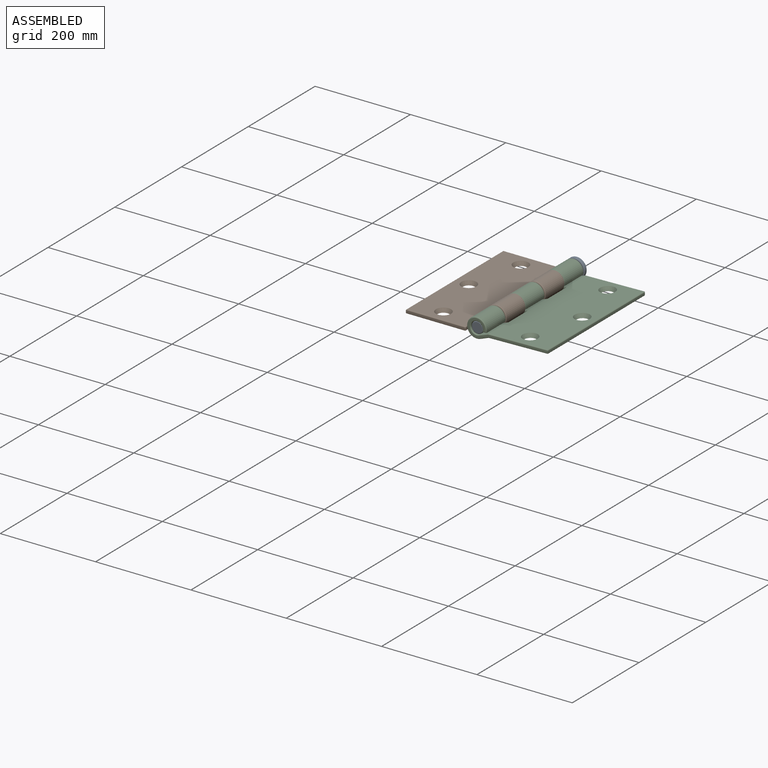
[diagram: assembled view]
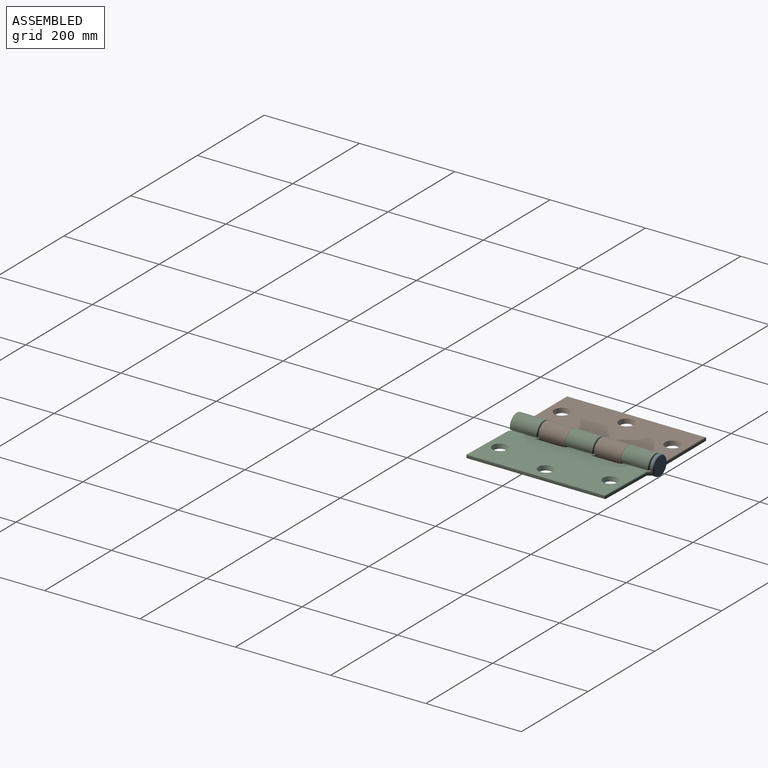
[diagram: assembled view, second angle]
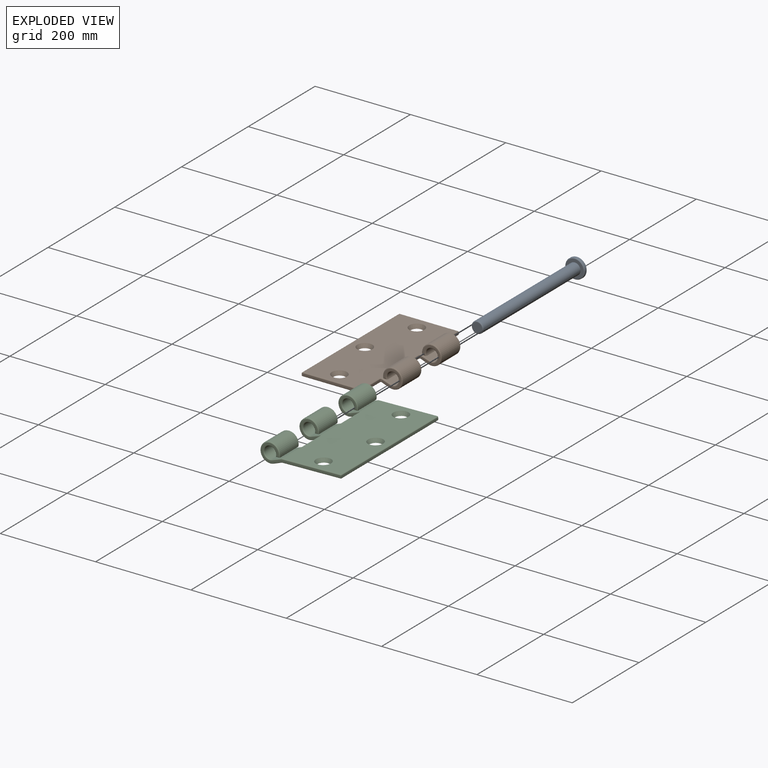
[diagram: exploded view]
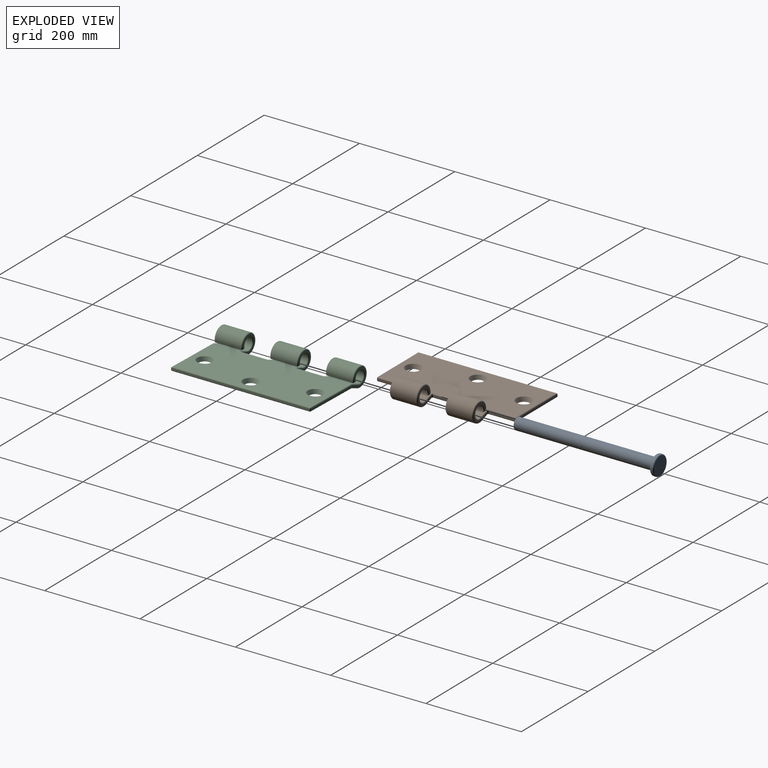
[diagram: exploded view, second angle]
ASSEMBLY  parts=3 mates=2
PART A: 8 faces, bbox 44.4x300x44.4 mm
  f0: cylinder r=12.25mm len=290mm, axis (0,1,0), area 22321mm2, adj f4,f7
  f1: plane 20.5x20.5mm, normal (0,-1,0), area 330.1mm2, adj f7
  f2: cylinder r=20.5mm len=41mm, axis (0,-1,0), area 515.2mm2, adj f5,f6
  f3: plane 37x37mm, normal (0,1,0), area 1075.2mm2, adj f6
  f4: plane 37x37mm, normal (0,-1,0), area 603.8mm2, adj f0,f5
  f5: torus R=18.5mm, axis (0,1,0), area 390.3mm2, adj f2,f4
  f6: torus R=18.5mm, axis (0,1,0), area 390.3mm2, adj f2,f3
  f7: torus R=10.25mm, axis (0,1,0), area 227.5mm2, adj f0,f1
PART B: 80 faces, bbox 171.7x292x44.4 mm
  f0: plane 54.85x17.59mm, normal (-0.34,0,-0.94), area 1016.5mm2, adj f2,f14,f58,f59,f69,f71
  f1: plane 54.85x17.59mm, normal (-0.34,0,-0.94), area 1016.5mm2, adj f3,f14,f35,f39,f78,f79
  f2: cylinder r=20.5mm len=54.4mm, axis (0,1,0), area 5913.6mm2, adj f0,f4,f56,f67
  f3: cylinder r=20.5mm len=54.4mm, axis (0,1,0), area 5913.6mm2, adj f1,f5,f33,f76
  f4: plane 54.4x8.42mm, normal (0,0,-1), area 458.3mm2, adj f2,f6,f54,f65
  f5: plane 54.4x8.42mm, normal (0,0,-1), area 458.3mm2, adj f3,f7,f31,f74
  f6: cylinder r=12.5mm len=54.4mm, axis (0,1,0), area 3703.3mm2, adj f4,f8,f52,f63
  f7: cylinder r=12.5mm len=54.4mm, axis (0,1,0), area 3703.3mm2, adj f5,f9,f29,f72
  f8: plane 56.21x20.54mm, normal (0.32,0,0.95), area 1179.8mm2, adj f6,f12,f46,f48,f50,f60,f61,f62
  f9: plane 56.21x20.54mm, normal (0.32,0,0.95), area 1179.8mm2, adj f7,f12,f30,f32,f34,f66,f68,f70
  f10: plane 123x4mm, normal (0,-1,0), area 492mm2, adj f13,f37,f44,f49
  f11: plane 125x4mm, normal (0,1,0), area 500mm2, adj f13,f24,f40,f53
  f12: plane 288x123mm, normal (0,0,1), area 32665.2mm2, adj f8,f9,f15,f16,f17,f34,f36,f37
  f13: plane 292x4mm, normal (-1,0,0), area 1168mm2, adj f10,f11,f36,f51
  f14: plane 288x123.06mm, normal (0,0,-1), area 33720.8mm2, adj f0,f1,f15,f16,f17,f39,f42,f45
  f15: cone r=12mm half-angle=26.6deg, axis (0,0,1), area 786.8mm2, adj f12,f14
  f16: cone r=12mm half-angle=26.6deg, axis (0,0,1), area 786.8mm2, adj f12,f14
  f17: cone r=16mm half-angle=26.6deg, axis (0,0,1), area 786.8mm2, adj f12,f14
  f18: plane 41x37mm, normal (0,-1,0), area 413.9mm2, adj f25,f29,f30,f31,f33,f35
  f19: plane 54.4x4mm, normal (1,0,0), area 217.6mm2, adj f25,f38,f44,f45
  f20: plane 41x37mm, normal (0,-1,0), area 413.9mm2, adj f26,f61,f63,f65,f67,f69
  f21: plane 41x37mm, normal (0,1,0), area 413.9mm2, adj f27,f70,f72,f74,f76,f78
  f22: plane 54.4x4mm, normal (1,0,0), area 217.6mm2, adj f26,f27,f64,f75
  f23: plane 41x37mm, normal (0,1,0), area 413.9mm2, adj f28,f50,f52,f54,f56,f58
  f24: plane 56.4x4mm, normal (1,0,0), area 225.6mm2, adj f11,f28,f43,f55
  f25: cylinder r=2mm len=4.59mm, axis (0,0,-1), area 12.3mm2, adj f18,f19,f32,f34,f39,f42
  f26: cylinder r=2mm len=4.59mm, axis (0,0,-1), area 12.3mm2, adj f20,f22,f60,f62,f71,f73
  f27: cylinder r=2mm len=4.59mm, axis (0,0,1), area 12.3mm2, adj f21,f22,f66,f68,f77,f79
  f28: cylinder r=2mm len=4.59mm, axis (0,0,1), area 12.3mm2, adj f23,f24,f46,f48,f57,f59
  f29: torus R=14.5mm, axis (0,-1,0), area 222mm2, adj f7,f18,f30,f31
  f30: cylinder r=2mm len=18.54mm, axis (0.95,0,-0.32), area 59.3mm2, adj f9,f18,f29,f32
  f31: cylinder r=2mm len=8.42mm, axis (-1,0,0), area 19.6mm2, adj f5,f18,f29,f33
  f32: bspline ~3.65x3.11mm, area 6mm2, adj f9,f25,f30,f34
  f33: torus R=18.5mm, axis (0,-1,0), area 326.9mm2, adj f3,f18,f31,f35
  f34: torus R=4mm, axis (0,0,-1), area 8.7mm2, adj f9,f12,f25,f32,f38
  f35: cylinder r=2mm len=16.94mm, axis (-0.94,0,0.34), area 54.3mm2, adj f1,f18,f33,f39
  f36: cylinder r=2mm len=292mm, axis (0,1,0), area 911.1mm2, adj f12,f13,f37,f40
  f37: cylinder r=2mm len=123mm, axis (1,0,0), area 383.3mm2, adj f10,f12,f36,f41
  f38: cylinder r=2mm len=54.4mm, axis (0,-1,0), area 170.9mm2, adj f12,f19,f34,f41
  f39: bspline ~2.47x2.33mm, area 3.5mm2, adj f1,f14,f25,f35,f42
  f40: cylinder r=2mm len=125mm, axis (-1,0,0), area 386.4mm2, adj f11,f12,f36,f43
  f41: sphere r=2mm, area 6.3mm2, adj f37,f38,f44
  f42: torus R=4mm, axis (0,0,1), area 9.2mm2, adj f14,f25,f39,f45
  f43: cylinder r=2mm len=56.4mm, axis (0,1,0), area 174mm2, adj f12,f24,f40,f46
  f44: cylinder r=2mm len=4mm, axis (0,0,1), area 12.6mm2, adj f10,f19,f41,f47
  f45: cylinder r=2mm len=54.4mm, axis (0,-1,0), area 170.9mm2, adj f14,f19,f42,f47
  f46: torus R=4mm, axis (0,0,-1), area 8.7mm2, adj f8,f12,f28,f43,f48
  f47: sphere r=2mm, area 6.3mm2, adj f44,f45,f49
  f48: bspline ~3.65x3.11mm, area 6mm2, adj f8,f28,f46,f50
  f49: cylinder r=2mm len=123mm, axis (-1,0,0), area 383.3mm2, adj f10,f14,f47,f51
  f50: cylinder r=2mm len=18.54mm, axis (-0.95,0,0.32), area 59.3mm2, adj f8,f23,f48,f52
  f51: cylinder r=2mm len=292mm, axis (0,1,0), area 911.1mm2, adj f13,f14,f49,f53
  f52: torus R=14.5mm, axis (0,-1,0), area 222mm2, adj f6,f23,f50,f54
  f53: cylinder r=2mm len=125mm, axis (1,0,0), area 386.4mm2, adj f11,f14,f51,f55
  f54: cylinder r=2mm len=8.42mm, axis (1,0,0), area 19.6mm2, adj f4,f23,f52,f56
  f55: cylinder r=2mm len=56.4mm, axis (0,-1,0), area 174mm2, adj f14,f24,f53,f57
  f56: torus R=18.5mm, axis (0,-1,0), area 326.9mm2, adj f2,f23,f54,f58
  f57: torus R=4mm, axis (0,0,1), area 9.2mm2, adj f14,f28,f55,f59
  f58: cylinder r=2mm len=16.94mm, axis (0.94,0,-0.34), area 54.3mm2, adj f0,f23,f56,f59
  f59: bspline ~2.47x2.33mm, area 3.5mm2, adj f0,f14,f28,f57,f58
  f60: bspline ~3.65x3.11mm, area 6mm2, adj f8,f26,f61,f62
  f61: cylinder r=2mm len=18.54mm, axis (0.95,0,-0.32), area 59.3mm2, adj f8,f20,f60,f63
  f62: torus R=4mm, axis (0,0,-1), area 8.7mm2, adj f8,f12,f26,f60,f64
  f63: torus R=14.5mm, axis (0,-1,0), area 222mm2, adj f6,f20,f61,f65
  f64: cylinder r=2mm len=54.4mm, axis (0,1,0), area 170.9mm2, adj f12,f22,f62,f66
  f65: cylinder r=2mm len=8.42mm, axis (-1,0,0), area 19.6mm2, adj f4,f20,f63,f67
  f66: torus R=4mm, axis (0,0,-1), area 8.7mm2, adj f9,f12,f27,f64,f68
  f67: torus R=18.5mm, axis (0,-1,0), area 326.9mm2, adj f2,f20,f65,f69
  f68: bspline ~2.75x2.54mm, area 6mm2, adj f9,f27,f66,f70
  f69: cylinder r=2mm len=16.94mm, axis (-0.94,0,0.34), area 54.3mm2, adj f0,f20,f67,f71
  f70: cylinder r=2mm len=18.54mm, axis (-0.95,0,0.32), area 59.3mm2, adj f9,f21,f68,f72
  f71: bspline ~2.47x2.33mm, area 3.5mm2, adj f0,f14,f26,f69,f73
  f72: torus R=14.5mm, axis (0,-1,0), area 222mm2, adj f7,f21,f70,f74
  f73: torus R=4mm, axis (0,0,1), area 9.2mm2, adj f14,f26,f71,f75
  f74: cylinder r=2mm len=8.42mm, axis (1,0,0), area 19.6mm2, adj f5,f21,f72,f76
  f75: cylinder r=2mm len=54.4mm, axis (0,-1,0), area 170.9mm2, adj f14,f22,f73,f77
  f76: torus R=18.5mm, axis (0,-1,0), area 326.9mm2, adj f3,f21,f74,f78
  f77: torus R=4mm, axis (0,0,1), area 9.2mm2, adj f14,f27,f75,f79
  f78: cylinder r=2mm len=16.94mm, axis (0.94,0,-0.34), area 54.3mm2, adj f1,f21,f76,f79
  f79: bspline ~2.47x2.33mm, area 3.5mm2, adj f1,f14,f27,f77,f78
PART C: 92 faces, bbox 171.7x292x44.4 mm
  f0: plane 54.63x17.59mm, normal (0.34,0,-0.94), area 1016.4mm2, adj f2,f17,f42,f44,f86
  f1: plane 54.85x17.59mm, normal (0.34,0,-0.94), area 1016.5mm2, adj f3,f17,f51,f52,f62,f64
  f2: cylinder r=20.5mm len=54.4mm, axis (0,1,0), area 5913.6mm2, adj f0,f4,f40,f88
  f3: cylinder r=20.5mm len=54.4mm, axis (0,1,0), area 5913.6mm2, adj f1,f5,f49,f60
  f4: plane 54.4x8.42mm, normal (0,0,-1), area 458.3mm2, adj f2,f6,f38,f90
  f5: plane 54.4x8.42mm, normal (0,0,-1), area 458.3mm2, adj f3,f7,f47,f58
  f6: cylinder r=12.5mm len=54.4mm, axis (0,1,0), area 3703.3mm2, adj f4,f8,f36,f91
  f7: cylinder r=12.5mm len=54.4mm, axis (0,1,0), area 3703.3mm2, adj f5,f9,f45,f56
  f8: plane 55.3x20.54mm, normal (-0.32,0,0.95), area 1179mm2, adj f6,f15,f33,f34,f35,f89
  f9: plane 56.21x20.54mm, normal (-0.32,0,0.95), area 1179.8mm2, adj f7,f15,f39,f41,f43,f53,f54,f55
  f10: plane 54.63x17.59mm, normal (0.34,0,-0.94), area 1016.4mm2, adj f11,f17,f71,f72,f75
  f11: cylinder r=20.5mm len=54.4mm, axis (0,1,0), area 5913.6mm2, adj f10,f12,f69,f73
  f12: plane 54.4x8.42mm, normal (0,0,-1), area 458.3mm2, adj f11,f13,f67,f74
  f13: cylinder r=12.5mm len=54.4mm, axis (0,1,0), area 3703.3mm2, adj f12,f14,f65,f76
  f14: plane 55.3x20.54mm, normal (-0.32,0,0.95), area 1179mm2, adj f13,f15,f59,f61,f63,f78
  f15: plane 288x123mm, normal (0,0,1), area 32774mm2, adj f8,f9,f14,f20,f21,f22,f35,f37
  f16: plane 290x4mm, normal (1,0,0), area 1160mm2, adj f18,f81,f82,f85
  f17: plane 288x123.06mm, normal (0,0,-1), area 33829.6mm2, adj f0,f1,f10,f20,f21,f22,f44,f46
  f18: plane 168x37mm, normal (0,-1,0), area 921.5mm2, adj f16,f84,f86,f87,f88,f89,f90,f91
  f19: plane 166x37mm, normal (0,1,0), area 913.5mm2, adj f73,f74,f75,f76,f77,f78,f80,f81
  f20: cone r=12mm half-angle=26.6deg, axis (0,0,1), area 786.8mm2, adj f15,f17
  f21: cone r=12mm half-angle=26.6deg, axis (0,0,1), area 786.8mm2, adj f15,f17
  f22: cone r=16mm half-angle=26.6deg, axis (0,0,1), area 786.8mm2, adj f15,f17
  f23: plane 41x37mm, normal (0,1,0), area 413.9mm2, adj f29,f54,f56,f58,f60,f62
  f24: plane 41x37mm, normal (0,-1,0), area 413.9mm2, adj f30,f63,f65,f67,f69,f71
  f25: plane 54.4x4mm, normal (-1,0,0), area 217.6mm2, adj f29,f30,f57,f68
  f26: plane 41x37mm, normal (0,1,0), area 413.9mm2, adj f31,f34,f36,f38,f40,f42
  f27: plane 41x37mm, normal (0,-1,0), area 413.9mm2, adj f32,f43,f45,f47,f49,f51
  f28: plane 54.4x4mm, normal (-1,0,0), area 217.6mm2, adj f31,f32,f37,f48
  f29: cylinder r=2mm len=4.59mm, axis (0,0,1), area 12.3mm2, adj f23,f25,f53,f55,f64,f66
  f30: cylinder r=2mm len=4.59mm, axis (0,0,-1), area 12.3mm2, adj f24,f25,f59,f61,f70,f72
  f31: cylinder r=2mm len=4.59mm, axis (0,0,1), area 12.3mm2, adj f26,f28,f33,f35,f44,f46
  f32: cylinder r=2mm len=4.59mm, axis (0,0,-1), area 12.3mm2, adj f27,f28,f39,f41,f50,f52
  f33: bspline ~2.75x2.54mm, area 6mm2, adj f8,f31,f34,f35
  f34: cylinder r=2mm len=18.54mm, axis (-0.95,0,-0.32), area 59.3mm2, adj f8,f26,f33,f36
  f35: torus R=4mm, axis (0,0,-1), area 8.7mm2, adj f8,f15,f31,f33,f37
  f36: torus R=14.5mm, axis (0,1,0), area 222mm2, adj f6,f26,f34,f38
  f37: cylinder r=2mm len=54.4mm, axis (0,-1,0), area 170.9mm2, adj f15,f28,f35,f39
  f38: cylinder r=2mm len=8.42mm, axis (1,0,0), area 19.6mm2, adj f4,f26,f36,f40
  f39: torus R=4mm, axis (0,0,-1), area 8.7mm2, adj f9,f15,f32,f37,f41
  f40: torus R=18.5mm, axis (0,1,0), area 326.9mm2, adj f2,f26,f38,f42
  f41: bspline ~3.65x3.11mm, area 6mm2, adj f9,f32,f39,f43
  f42: cylinder r=2mm len=16.94mm, axis (0.94,0,0.34), area 54.3mm2, adj f0,f26,f40,f44
  f43: cylinder r=2mm len=18.54mm, axis (0.95,0,0.32), area 59.3mm2, adj f9,f27,f41,f45
  f44: bspline ~2.47x2.33mm, area 3.5mm2, adj f0,f17,f31,f42,f46
  f45: torus R=14.5mm, axis (0,1,0), area 222mm2, adj f7,f27,f43,f47
  f46: torus R=4mm, axis (0,0,1), area 9.2mm2, adj f17,f31,f44,f48
  f47: cylinder r=2mm len=8.42mm, axis (-1,0,0), area 19.6mm2, adj f5,f27,f45,f49
  f48: cylinder r=2mm len=54.4mm, axis (0,1,0), area 170.9mm2, adj f17,f28,f46,f50
  f49: torus R=18.5mm, axis (0,1,0), area 326.9mm2, adj f3,f27,f47,f51
  f50: torus R=4mm, axis (0,0,1), area 9.2mm2, adj f17,f32,f48,f52
  f51: cylinder r=2mm len=16.94mm, axis (-0.94,0,-0.34), area 54.3mm2, adj f1,f27,f49,f52
  f52: bspline ~2.47x2.33mm, area 3.5mm2, adj f1,f17,f32,f50,f51
  f53: bspline ~2.75x2.54mm, area 6mm2, adj f9,f29,f54,f55
  f54: cylinder r=2mm len=18.54mm, axis (-0.95,0,-0.32), area 59.3mm2, adj f9,f23,f53,f56
  f55: torus R=4mm, axis (0,0,-1), area 8.7mm2, adj f9,f15,f29,f53,f57
  f56: torus R=14.5mm, axis (0,1,0), area 222mm2, adj f7,f23,f54,f58
  f57: cylinder r=2mm len=54.4mm, axis (0,-1,0), area 170.9mm2, adj f15,f25,f55,f59
  f58: cylinder r=2mm len=8.42mm, axis (1,0,0), area 19.6mm2, adj f5,f23,f56,f60
  f59: torus R=4mm, axis (0,0,-1), area 8.7mm2, adj f14,f15,f30,f57,f61
  f60: torus R=18.5mm, axis (0,1,0), area 326.9mm2, adj f3,f23,f58,f62
  f61: bspline ~3.65x3.11mm, area 6mm2, adj f14,f30,f59,f63
  f62: cylinder r=2mm len=16.94mm, axis (0.94,0,0.34), area 54.3mm2, adj f1,f23,f60,f64
  f63: cylinder r=2mm len=18.54mm, axis (0.95,0,0.32), area 59.3mm2, adj f14,f24,f61,f65
  f64: bspline ~2.47x2.33mm, area 3.5mm2, adj f1,f17,f29,f62,f66
  f65: torus R=14.5mm, axis (0,1,0), area 222mm2, adj f13,f24,f63,f67
  f66: torus R=4mm, axis (0,0,1), area 9.2mm2, adj f17,f29,f64,f68
  f67: cylinder r=2mm len=8.42mm, axis (-1,0,0), area 19.6mm2, adj f12,f24,f65,f69
  f68: cylinder r=2mm len=54.4mm, axis (0,1,0), area 170.9mm2, adj f17,f25,f66,f70
  f69: torus R=18.5mm, axis (0,1,0), area 326.9mm2, adj f11,f24,f67,f71
  f70: torus R=4mm, axis (0,0,1), area 9.2mm2, adj f17,f30,f68,f72
  f71: cylinder r=2mm len=16.94mm, axis (-0.94,0,-0.34), area 54.3mm2, adj f10,f24,f69,f72
  f72: bspline ~2.47x2.33mm, area 3.5mm2, adj f10,f17,f30,f70,f71
  f73: torus R=18.5mm, axis (0,-1,0), area 326.9mm2, adj f11,f19,f74,f75
  f74: cylinder r=2mm len=8.42mm, axis (-1,0,0), area 19.6mm2, adj f12,f19,f73,f76
  f75: cylinder r=2mm len=18.59mm, axis (-0.94,0,-0.34), area 59.2mm2, adj f10,f19,f73,f77
  f76: torus R=14.5mm, axis (0,-1,0), area 222mm2, adj f13,f19,f74,f78
  f77: cylinder r=2mm len=123.35mm, axis (-1,0,0), area 387mm2, adj f17,f19,f75,f79
  f78: cylinder r=2mm len=21.18mm, axis (0.95,0,0.32), area 67.5mm2, adj f14,f19,f76,f80
  f79: sphere r=2mm, area 4mm2, adj f77,f81,f82
  f80: cylinder r=2mm len=123mm, axis (1,0,0), area 385.9mm2, adj f15,f19,f78,f83
  f81: cylinder r=2mm len=4mm, axis (0,0,-1), area 12.6mm2, adj f16,f19,f79,f83
  f82: cylinder r=2mm len=290mm, axis (0,1,0), area 907.9mm2, adj f16,f17,f79,f84
  f83: sphere r=2mm, area 6.3mm2, adj f80,f81,f85
  f84: cylinder r=2mm len=125.35mm, axis (1,0,0), area 390.1mm2, adj f17,f18,f82,f86
  f85: cylinder r=2mm len=290mm, axis (0,1,0), area 907.9mm2, adj f15,f16,f83,f87
  f86: cylinder r=2mm len=18.59mm, axis (0.94,0,0.34), area 59.2mm2, adj f0,f18,f84,f88
  f87: cylinder r=2mm len=125mm, axis (-1,0,0), area 389mm2, adj f15,f18,f85,f89
  f88: torus R=18.5mm, axis (0,-1,0), area 326.9mm2, adj f2,f18,f86,f90
  f89: cylinder r=2mm len=21.18mm, axis (-0.95,0,-0.32), area 67.5mm2, adj f8,f18,f87,f91
  f90: cylinder r=2mm len=8.42mm, axis (1,0,0), area 19.6mm2, adj f4,f18,f88,f91
  f91: torus R=14.5mm, axis (0,-1,0), area 222mm2, adj f6,f18,f89,f90
PLACE A t=(0,0.4,0)mm
PLACE B at identity fixed
PLACE C rot(axis=(0,-1,0),1.3deg) t=(0.12,-1.6,-0.55)mm
MATE revolute A.f0 <-> C.f2  axis (0,-1,0) through (24.5,-291.6,5)mm
MATE revolute A.f0 <-> B.f2  axis (0,-1,0) through (24.5,-291.6,5)mm
